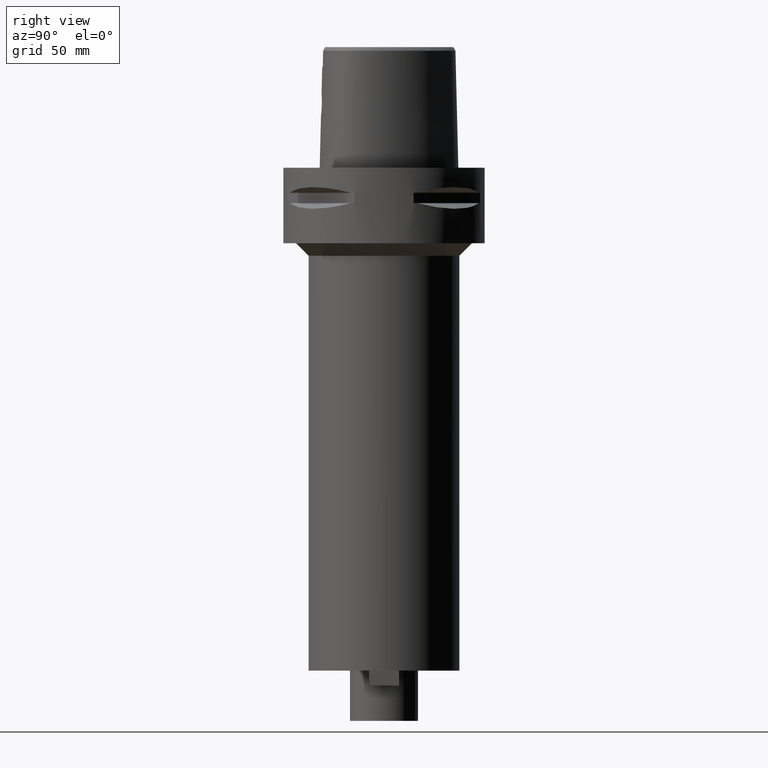
[diagram: clean part render]
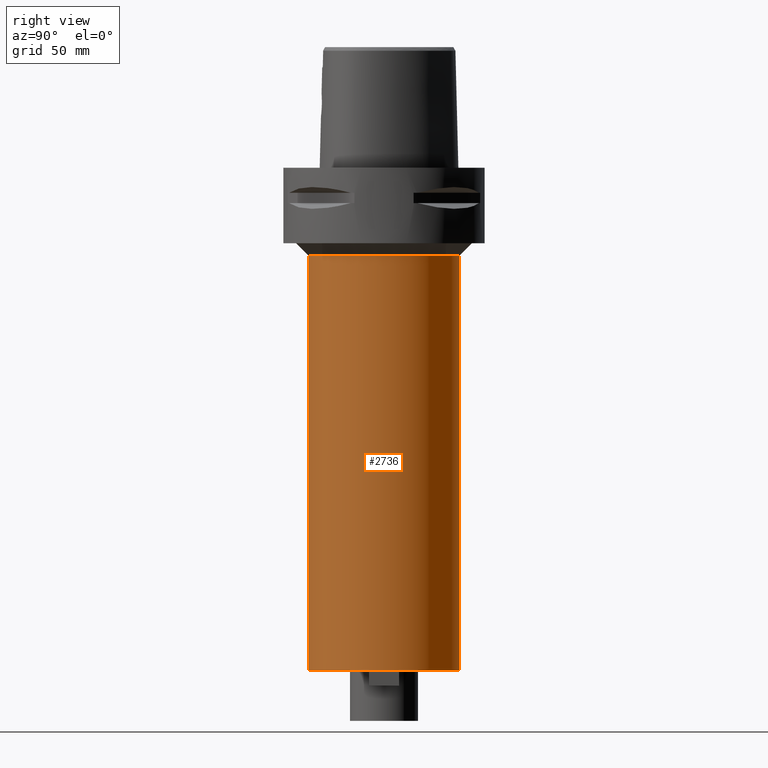
[diagram: same view with one face highlighted and labeled with its STEP entity id]
A machine part, right view. The second image highlights one B-rep face of the part: STEP entity #2736.
In plain terms, the highlighted cylindrical surface (partial cylindrical patch) has radius 30 mm, axis along (0, 0, -1).
Its self-contained STEP definition (entity closure, byte-faithful):
#531=CARTESIAN_POINT('',(0.E0,0.E0,-3.5E1));
#532=DIRECTION('',(0.E0,0.E0,-1.E0));
#533=DIRECTION('',(0.E0,1.E0,0.E0));
#534=AXIS2_PLACEMENT_3D('',#531,#532,#533);
#539=DIRECTION('',(0.E0,0.E0,-1.E0));
#540=VECTOR('',#539,1.65E2);
#541=CARTESIAN_POINT('',(0.E0,3.E1,-3.5E1));
#542=LINE('',#541,#540);
#546=DIRECTION('',(0.E0,0.E0,-1.E0));
#547=VECTOR('',#546,1.65E2);
#548=CARTESIAN_POINT('',(0.E0,-3.E1,-3.5E1));
#549=LINE('',#548,#547);
#553=CARTESIAN_POINT('',(0.E0,1.359357947054E-14,-2.E2));
#554=DIRECTION('',(0.E0,0.E0,1.E0));
#555=DIRECTION('',(0.E0,-1.E0,0.E0));
#556=AXIS2_PLACEMENT_3D('',#553,#554,#555);
#1712=CARTESIAN_POINT('',(0.E0,3.E1,-3.5E1));
#1713=VERTEX_POINT('',#1712);
#1714=CARTESIAN_POINT('',(0.E0,-3.E1,-3.5E1));
#1715=VERTEX_POINT('',#1714);
#1716=CARTESIAN_POINT('',(0.E0,3.E1,-2.E2));
#1717=VERTEX_POINT('',#1716);
#1718=CARTESIAN_POINT('',(0.E0,-3.E1,-2.E2));
#1719=VERTEX_POINT('',#1718);
#2722=CARTESIAN_POINT('',(0.E0,1.359357947054E-14,1.1E1));
#2723=DIRECTION('',(0.E0,0.E0,-1.E0));
#2724=DIRECTION('',(0.E0,-1.E0,0.E0));
#2725=AXIS2_PLACEMENT_3D('',#2722,#2723,#2724);
#2726=CYLINDRICAL_SURFACE('',#2725,3.E1);
#2728=ORIENTED_EDGE('',*,*,#2727,.T.);
#2730=ORIENTED_EDGE('',*,*,#2729,.F.);
#2732=ORIENTED_EDGE('',*,*,#2731,.F.);
#2733=ORIENTED_EDGE('',*,*,#2715,.F.);
#2734=EDGE_LOOP('',(#2728,#2730,#2732,#2733));
#2735=FACE_OUTER_BOUND('',#2734,.F.);
#535=CIRCLE('',#534,3.E1);
#557=CIRCLE('',#556,3.E1);
#2715=EDGE_CURVE('',#1713,#1715,#535,.T.);
#2727=EDGE_CURVE('',#1713,#1717,#542,.T.);
#2729=EDGE_CURVE('',#1719,#1717,#557,.T.);
#2731=EDGE_CURVE('',#1715,#1719,#549,.T.);
#2736=ADVANCED_FACE('',(#2735),#2726,.T.);